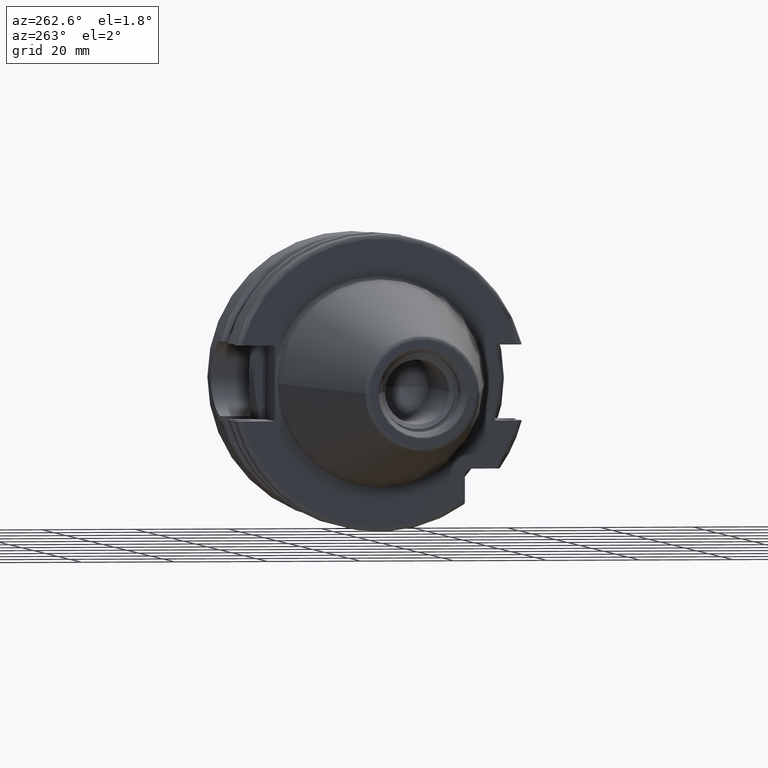
[diagram: clean part render]
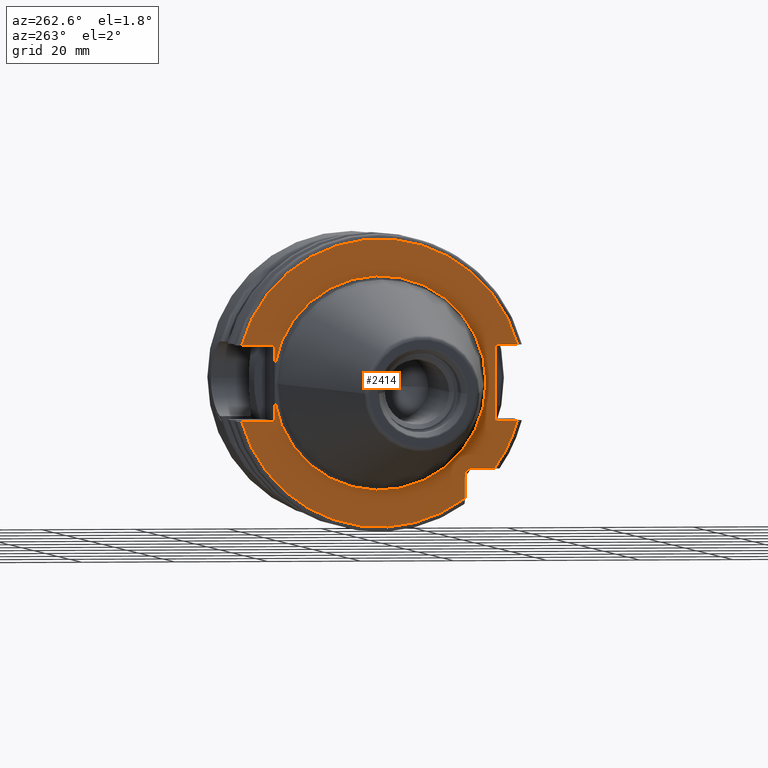
[diagram: same view with one face highlighted and labeled with its STEP entity id]
A machine part, auxiliary view. The second image highlights one B-rep face of the part: STEP entity #2414.
In plain terms, the highlighted planar face has unit normal (1, 0, 0).
Its self-contained STEP definition (entity closure, byte-faithful):
#117=CARTESIAN_POINT('',(3.2E0,0.E0,0.E0));
#118=DIRECTION('',(-1.E0,0.E0,0.E0));
#119=DIRECTION('',(0.E0,9.857923497268E-1,-1.679685780739E-1));
#120=AXIS2_PLACEMENT_3D('',#117,#118,#119);
#463=DIRECTION('',(0.E0,-1.E0,0.E0));
#464=VECTOR('',#463,4.990259339464E0);
#465=CARTESIAN_POINT('',(3.2E0,-1.97E1,-1.835E1));
#466=LINE('',#465,#464);
#467=DIRECTION('',(0.E0,0.E0,1.E0));
#468=VECTOR('',#467,4.990259339464E0);
#469=CARTESIAN_POINT('',(3.2E0,-1.835E1,-2.469025933946E1));
#470=LINE('',#469,#468);
#471=CARTESIAN_POINT('',(3.2E0,0.E0,0.E0));
#472=DIRECTION('',(-1.E0,0.E0,0.E0));
#473=DIRECTION('',(0.E0,9.647119303464E-1,-2.633075985372E-1));
#474=AXIS2_PLACEMENT_3D('',#471,#472,#473);
#476=DIRECTION('',(0.E0,-1.E0,0.E0));
#477=VECTOR('',#476,7.126950757280E0);
#478=CARTESIAN_POINT('',(3.2E0,2.967695075728E1,-8.1E0));
#479=LINE('',#478,#477);
#480=DIRECTION('',(0.E0,0.E0,-1.E0));
#481=VECTOR('',#480,4.257718776560E0);
#482=CARTESIAN_POINT('',(3.2E0,2.255E1,-3.842281223440E0));
#483=LINE('',#482,#481);
#484=DIRECTION('',(0.E0,0.E0,-1.E0));
#485=VECTOR('',#484,4.257718776560E0);
#486=CARTESIAN_POINT('',(3.2E0,2.255E1,8.1E0));
#487=LINE('',#486,#485);
#488=DIRECTION('',(0.E0,-1.E0,0.E0));
#489=VECTOR('',#488,7.126950757280E0);
#490=CARTESIAN_POINT('',(3.2E0,2.967695075728E1,8.1E0));
#491=LINE('',#490,#489);
#492=CARTESIAN_POINT('',(3.2E0,0.E0,0.E0));
#493=DIRECTION('',(1.E0,0.E0,0.E0));
#494=DIRECTION('',(0.E0,9.647119303464E-1,2.633075985372E-1));
#495=AXIS2_PLACEMENT_3D('',#492,#493,#494);
#497=DIRECTION('',(0.E0,1.E0,0.E0));
#498=VECTOR('',#497,4.826950757280E0);
#499=CARTESIAN_POINT('',(3.2E0,-2.967695075728E1,8.1E0));
#500=LINE('',#499,#498);
#501=DIRECTION('',(0.E0,0.E0,1.E0));
#502=VECTOR('',#501,1.62E1);
#503=CARTESIAN_POINT('',(3.2E0,-2.485E1,-8.1E0));
#504=LINE('',#503,#502);
#505=DIRECTION('',(0.E0,1.E0,0.E0));
#506=VECTOR('',#505,4.826950757280E0);
#507=CARTESIAN_POINT('',(3.2E0,-2.967695075728E1,-8.1E0));
#508=LINE('',#507,#506);
#509=CARTESIAN_POINT('',(3.2E0,0.E0,0.E0));
#510=DIRECTION('',(-1.E0,0.E0,0.E0));
#511=DIRECTION('',(0.E0,-8.026089992512E-1,-5.965054855750E-1));
#512=AXIS2_PLACEMENT_3D('',#509,#510,#511);
#523=CARTESIAN_POINT('',(3.2E0,-1.97E1,-1.97E1));
#524=DIRECTION('',(1.E0,0.E0,0.E0));
#525=DIRECTION('',(0.E0,1.E0,0.E0));
#526=AXIS2_PLACEMENT_3D('',#523,#524,#525);
#1248=CARTESIAN_POINT('',(3.2E0,0.E0,0.E0));
#1249=DIRECTION('',(1.E0,0.E0,0.E0));
#1250=DIRECTION('',(0.E0,9.857923497268E-1,1.679685780739E-1));
#1251=AXIS2_PLACEMENT_3D('',#1248,#1249,#1250);
#1533=CARTESIAN_POINT('',(3.2E0,-2.2875E1,0.E0));
#1535=VERTEX_POINT('',#1533);
#1675=CARTESIAN_POINT('',(3.2E0,2.967695075728E1,8.1E0));
#1676=CARTESIAN_POINT('',(3.2E0,2.255E1,8.1E0));
#1677=VERTEX_POINT('',#1675);
#1678=VERTEX_POINT('',#1676);
#1679=CARTESIAN_POINT('',(3.2E0,2.255E1,3.842281223440E0));
#1680=VERTEX_POINT('',#1679);
#1681=CARTESIAN_POINT('',(3.2E0,2.255E1,-3.842281223440E0));
#1682=CARTESIAN_POINT('',(3.2E0,2.255E1,-8.1E0));
#1683=VERTEX_POINT('',#1681);
#1684=VERTEX_POINT('',#1682);
#1685=CARTESIAN_POINT('',(3.2E0,2.967695075728E1,-8.1E0));
#1686=VERTEX_POINT('',#1685);
#1687=CARTESIAN_POINT('',(3.2E0,-2.967695075728E1,-8.1E0));
#1688=CARTESIAN_POINT('',(3.2E0,-2.485E1,-8.1E0));
#1689=VERTEX_POINT('',#1687);
#1690=VERTEX_POINT('',#1688);
#1691=CARTESIAN_POINT('',(3.2E0,-2.485E1,8.1E0));
#1692=VERTEX_POINT('',#1691);
#1693=CARTESIAN_POINT('',(3.2E0,-2.967695075728E1,8.1E0));
#1694=VERTEX_POINT('',#1693);
#1720=CARTESIAN_POINT('',(3.2E0,-1.835E1,-2.469025933946E1));
#1721=VERTEX_POINT('',#1720);
#1728=CARTESIAN_POINT('',(3.2E0,-1.97E1,-1.835E1));
#1729=CARTESIAN_POINT('',(3.2E0,-2.469025933946E1,-1.835E1));
#1730=VERTEX_POINT('',#1728);
#1731=VERTEX_POINT('',#1729);
#1732=CARTESIAN_POINT('',(3.2E0,-1.835E1,-1.97E1));
#1733=VERTEX_POINT('',#1732);
#2382=CARTESIAN_POINT('',(3.2E0,0.E0,0.E0));
#2383=DIRECTION('',(1.E0,0.E0,0.E0));
#2384=DIRECTION('',(0.E0,-1.E0,0.E0));
#2385=AXIS2_PLACEMENT_3D('',#2382,#2383,#2384);
#2386=PLANE('',#2385);
#2388=ORIENTED_EDGE('',*,*,#2387,.F.);
#2390=ORIENTED_EDGE('',*,*,#2389,.F.);
#2392=ORIENTED_EDGE('',*,*,#2391,.F.);
#2394=ORIENTED_EDGE('',*,*,#2393,.F.);
#2395=ORIENTED_EDGE('',*,*,#2354,.T.);
#2396=ORIENTED_EDGE('',*,*,#1967,.F.);
#2397=ORIENTED_EDGE('',*,*,#1948,.T.);
#2399=ORIENTED_EDGE('',*,*,#2398,.F.);
#2400=ORIENTED_EDGE('',*,*,#1962,.F.);
#2401=ORIENTED_EDGE('',*,*,#2039,.F.);
#2403=ORIENTED_EDGE('',*,*,#2402,.T.);
#2405=ORIENTED_EDGE('',*,*,#2404,.T.);
#2407=ORIENTED_EDGE('',*,*,#2406,.F.);
#2409=ORIENTED_EDGE('',*,*,#2408,.F.);
#2411=ORIENTED_EDGE('',*,*,#2410,.F.);
#2412=EDGE_LOOP('',(#2388,#2390,#2392,#2394,#2395,#2396,#2397,#2399,#2400,#2401,
#2403,#2405,#2407,#2409,#2411));
#2413=FACE_OUTER_BOUND('',#2412,.F.);
#2414=ADVANCED_FACE('',(#2413),#2386,.F.);
#121=CIRCLE('',#120,2.2875E1);
#475=CIRCLE('',#474,3.07625E1);
#496=CIRCLE('',#495,3.07625E1);
#513=CIRCLE('',#512,3.07625E1);
#527=CIRCLE('',#526,1.35E0);
#1252=CIRCLE('',#1251,2.2875E1);
#1948=EDGE_CURVE('',#1683,#1535,#121,.T.);
#1962=EDGE_CURVE('',#1678,#1680,#487,.T.);
#1967=EDGE_CURVE('',#1683,#1684,#483,.T.);
#2039=EDGE_CURVE('',#1677,#1678,#491,.T.);
#2354=EDGE_CURVE('',#1686,#1684,#479,.T.);
#2387=EDGE_CURVE('',#1730,#1731,#466,.T.);
#2389=EDGE_CURVE('',#1733,#1730,#527,.T.);
#2391=EDGE_CURVE('',#1721,#1733,#470,.T.);
#2393=EDGE_CURVE('',#1686,#1721,#475,.T.);
#2398=EDGE_CURVE('',#1680,#1535,#1252,.T.);
#2402=EDGE_CURVE('',#1677,#1694,#496,.T.);
#2404=EDGE_CURVE('',#1694,#1692,#500,.T.);
#2406=EDGE_CURVE('',#1690,#1692,#504,.T.);
#2408=EDGE_CURVE('',#1689,#1690,#508,.T.);
#2410=EDGE_CURVE('',#1731,#1689,#513,.T.);